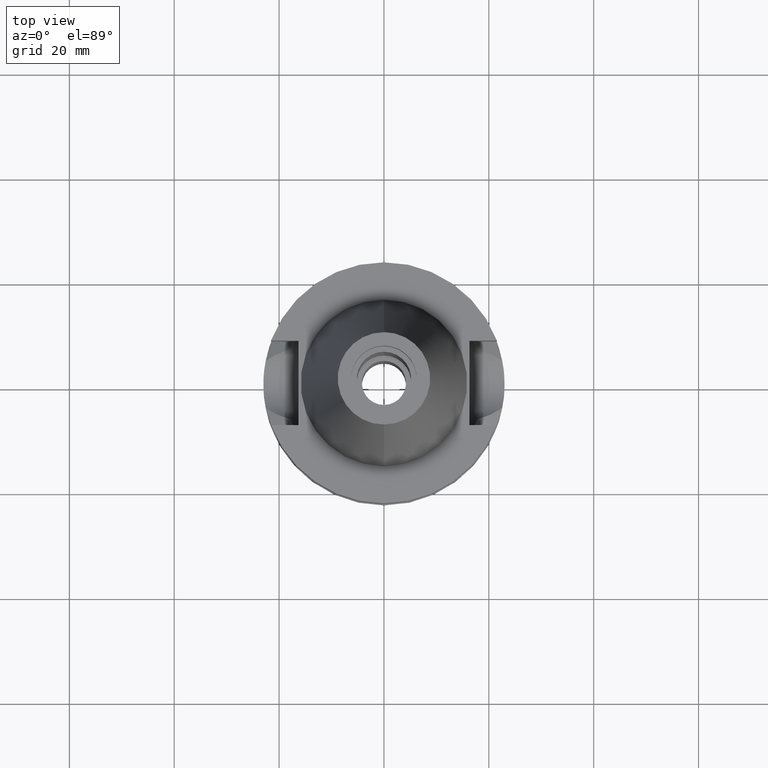
[diagram: clean part render]
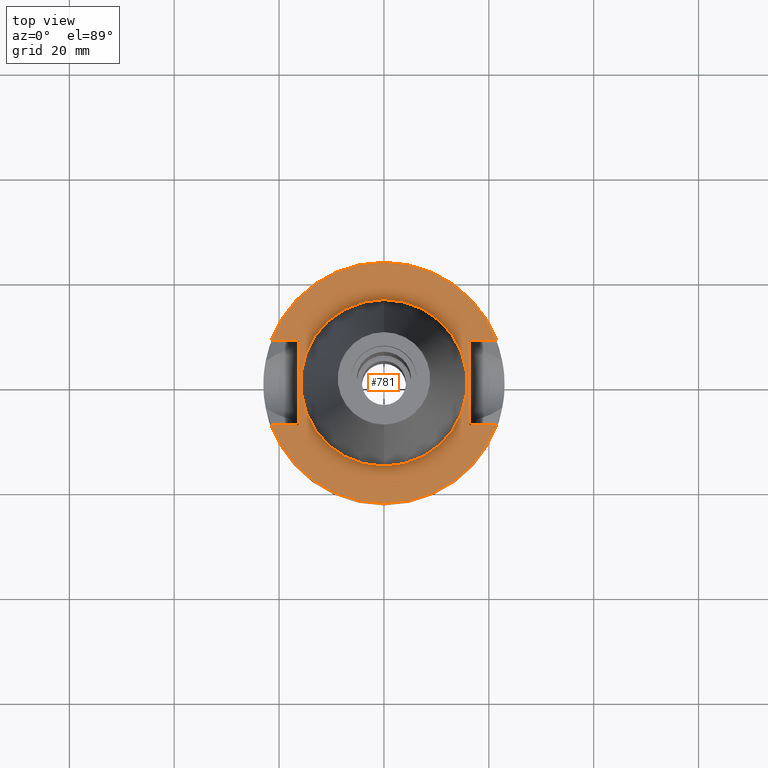
[diagram: same view with one face highlighted and labeled with its STEP entity id]
A machine part, top view. The second image highlights one B-rep face of the part: STEP entity #781.
In plain terms, the highlighted planar face has unit normal (0, 0, -1).
Its self-contained STEP definition (entity closure, byte-faithful):
#128 = VERTEX_POINT ( 'NONE', #2530 ) ;
#136 = CARTESIAN_POINT ( 'NONE',  ( 0.0000000000000000000, 0.0000000000000000000, -1.000000000000000000 ) ) ;
#184 = CARTESIAN_POINT ( 'NONE',  ( -21.54524309446999908, -8.050000000000000711, -1.000000000000000000 ) ) ;
#189 = LINE ( 'NONE', #2167, #2535 ) ;
#250 = VECTOR ( 'NONE', #556, 1000.000000000000000 ) ;
#280 = LINE ( 'NONE', #2700, #250 ) ;
#337 = LINE ( 'NONE', #1552, #861 ) ;
#408 = EDGE_CURVE ( 'NONE', #128, #1515, #189, .T. ) ;
#484 = EDGE_CURVE ( 'NONE', #1167, #726, #2929, .T. ) ;
#508 = PLANE ( 'NONE',  #1139 ) ;
#524 = DIRECTION ( 'NONE',  ( 0.0000000000000000000, 0.0000000000000000000, -1.000000000000000000 ) ) ;
#556 = DIRECTION ( 'NONE',  ( 1.000000000000000000, 9.313164748262000573E-14, 0.0000000000000000000 ) ) ;
#582 = CARTESIAN_POINT ( 'NONE',  ( 16.29999999999999716, 8.050000000000000711, -1.000000000000000000 ) ) ;
#587 = EDGE_CURVE ( 'NONE', #2203, #3000, #1337, .T. ) ;
#618 = CARTESIAN_POINT ( 'NONE',  ( 0.0000000000000000000, -15.87500000000000000, -1.000000000000000000 ) ) ;
#630 = VERTEX_POINT ( 'NONE', #1384 ) ;
#651 = DIRECTION ( 'NONE',  ( 0.0000000000000000000, 1.000000000000000000, 0.0000000000000000000 ) ) ;
#674 = CARTESIAN_POINT ( 'NONE',  ( -16.29999999999999716, -8.050000000000000711, -1.000000000000000000 ) ) ;
#690 = CARTESIAN_POINT ( 'NONE',  ( -16.29999999999999716, -8.050000000000000711, -1.000000000000000000 ) ) ;
#726 = VERTEX_POINT ( 'NONE', #184 ) ;
#752 = DIRECTION ( 'NONE',  ( 0.0000000000000000000, -1.000000000000000000, 0.0000000000000000000 ) ) ;
#781 = ADVANCED_FACE ( 'NONE', ( #2592, #1419 ), #508, .F. ) ;
#792 = ORIENTED_EDGE ( 'NONE', *, *, #2649, .F. ) ;
#861 = VECTOR ( 'NONE', #1305, 1000.000000000000000 ) ;
#953 = VECTOR ( 'NONE', #2012, 1000.000000000000000 ) ;
#1031 = DIRECTION ( 'NONE',  ( 0.0000000000000000000, 0.0000000000000000000, 1.000000000000000000 ) ) ;
#1069 = DIRECTION ( 'NONE',  ( 0.0000000000000000000, -1.000000000000000000, 0.0000000000000000000 ) ) ;
#1139 = AXIS2_PLACEMENT_3D ( 'NONE', #1895, #1468, #1663 ) ;
#1167 = VERTEX_POINT ( 'NONE', #2970 ) ;
#1203 = DIRECTION ( 'NONE',  ( 0.0000000000000000000, 0.0000000000000000000, -1.000000000000000000 ) ) ;
#1211 = ORIENTED_EDGE ( 'NONE', *, *, #1374, .F. ) ;
#1238 = VERTEX_POINT ( 'NONE', #1320 ) ;
#1272 = EDGE_CURVE ( 'NONE', #1167, #630, #1286, .T. ) ;
#1273 = LINE ( 'NONE', #582, #1603 ) ;
#1286 = LINE ( 'NONE', #2244, #953 ) ;
#1303 = ORIENTED_EDGE ( 'NONE', *, *, #484, .F. ) ;
#1305 = DIRECTION ( 'NONE',  ( 1.000000000000000000, -9.347030801892000173E-14, 0.0000000000000000000 ) ) ;
#1317 = ORIENTED_EDGE ( 'NONE', *, *, #587, .F. ) ;
#1320 = CARTESIAN_POINT ( 'NONE',  ( -16.29999999999999716, 8.050000000000000711, -1.000000000000000000 ) ) ;
#1337 = CIRCLE ( 'NONE', #2896, 15.87500000000000000 ) ;
#1374 = EDGE_CURVE ( 'NONE', #2316, #1238, #2818, .T. ) ;
#1384 = CARTESIAN_POINT ( 'NONE',  ( 16.29999999999999716, -8.050000000000000711, -1.000000000000000000 ) ) ;
#1396 = CIRCLE ( 'NONE', #2681, 15.87500000000000000 ) ;
#1407 = AXIS2_PLACEMENT_3D ( 'NONE', #2406, #1203, #1446 ) ;
#1419 = FACE_BOUND ( 'NONE', #1779, .T. ) ;
#1424 = EDGE_CURVE ( 'NONE', #3000, #2203, #1396, .T. ) ;
#1446 = DIRECTION ( 'NONE',  ( -0.9367496997597649644, 0.3499999999999864886, 0.0000000000000000000 ) ) ;
#1468 = DIRECTION ( 'NONE',  ( 0.0000000000000000000, 0.0000000000000000000, -1.000000000000000000 ) ) ;
#1485 = DIRECTION ( 'NONE',  ( 0.0000000000000000000, -1.000000000000000000, 0.0000000000000000000 ) ) ;
#1504 = CARTESIAN_POINT ( 'NONE',  ( 0.0000000000000000000, 0.0000000000000000000, -1.000000000000000000 ) ) ;
#1515 = VERTEX_POINT ( 'NONE', #1756 ) ;
#1552 = CARTESIAN_POINT ( 'NONE',  ( -21.54524309446999908, 8.050000000000000711, -1.000000000000000000 ) ) ;
#1595 = ORIENTED_EDGE ( 'NONE', *, *, #408, .F. ) ;
#1603 = VECTOR ( 'NONE', #1069, 1000.000000000000000 ) ;
#1637 = DIRECTION ( 'NONE',  ( 0.0000000000000000000, 1.000000000000000000, 0.0000000000000000000 ) ) ;
#1662 = EDGE_CURVE ( 'NONE', #1515, #630, #1273, .T. ) ;
#1663 = DIRECTION ( 'NONE',  ( 0.0000000000000000000, -1.000000000000000000, 0.0000000000000000000 ) ) ;
#1756 = CARTESIAN_POINT ( 'NONE',  ( 16.29999999999999716, 8.050000000000000711, -1.000000000000000000 ) ) ;
#1779 = EDGE_LOOP ( 'NONE', ( #1317, #2572 ) ) ;
#1895 = CARTESIAN_POINT ( 'NONE',  ( 0.0000000000000000000, 0.0000000000000000000, -1.000000000000000000 ) ) ;
#2000 = EDGE_LOOP ( 'NONE', ( #792, #1303, #2490, #2038, #1595, #2607, #2726, #1211 ) ) ;
#2012 = DIRECTION ( 'NONE',  ( -1.000000000000000000, 9.347030801892000173E-14, 0.0000000000000000000 ) ) ;
#2025 = CARTESIAN_POINT ( 'NONE',  ( 0.0000000000000000000, 15.87500000000000000, -1.000000000000000000 ) ) ;
#2038 = ORIENTED_EDGE ( 'NONE', *, *, #1662, .F. ) ;
#2102 = CIRCLE ( 'NONE', #1407, 23.00000000000000355 ) ;
#2167 = CARTESIAN_POINT ( 'NONE',  ( 21.54524309446999908, 8.050000000000000711, -1.000000000000000000 ) ) ;
#2177 = CARTESIAN_POINT ( 'NONE',  ( 0.0000000000000000000, 0.0000000000000000000, -1.000000000000000000 ) ) ;
#2203 = VERTEX_POINT ( 'NONE', #2025 ) ;
#2240 = VECTOR ( 'NONE', #1637, 1000.000000000000000 ) ;
#2244 = CARTESIAN_POINT ( 'NONE',  ( 21.54524309446999908, -8.050000000000000711, -1.000000000000000000 ) ) ;
#2279 = VERTEX_POINT ( 'NONE', #2524 ) ;
#2316 = VERTEX_POINT ( 'NONE', #674 ) ;
#2406 = CARTESIAN_POINT ( 'NONE',  ( 0.0000000000000000000, 0.0000000000000000000, -1.000000000000000000 ) ) ;
#2490 = ORIENTED_EDGE ( 'NONE', *, *, #1272, .T. ) ;
#2524 = CARTESIAN_POINT ( 'NONE',  ( -21.54524309446999908, 8.050000000000000711, -1.000000000000000000 ) ) ;
#2530 = CARTESIAN_POINT ( 'NONE',  ( 21.54524309446999908, 8.050000000000000711, -1.000000000000000000 ) ) ;
#2535 = VECTOR ( 'NONE', #3056, 1000.000000000000000 ) ;
#2572 = ORIENTED_EDGE ( 'NONE', *, *, #1424, .F. ) ;
#2592 = FACE_OUTER_BOUND ( 'NONE', #2000, .T. ) ;
#2607 = ORIENTED_EDGE ( 'NONE', *, *, #2755, .F. ) ;
#2649 = EDGE_CURVE ( 'NONE', #726, #2316, #280, .T. ) ;
#2681 = AXIS2_PLACEMENT_3D ( 'NONE', #1504, #1031, #752 ) ;
#2700 = CARTESIAN_POINT ( 'NONE',  ( -21.54524309446999908, -8.050000000000000711, -1.000000000000000000 ) ) ;
#2726 = ORIENTED_EDGE ( 'NONE', *, *, #2831, .T. ) ;
#2755 = EDGE_CURVE ( 'NONE', #2279, #128, #2102, .T. ) ;
#2772 = DIRECTION ( 'NONE',  ( 0.0000000000000000000, 0.0000000000000000000, 1.000000000000000000 ) ) ;
#2818 = LINE ( 'NONE', #690, #2240 ) ;
#2825 = AXIS2_PLACEMENT_3D ( 'NONE', #2177, #524, #1485 ) ;
#2831 = EDGE_CURVE ( 'NONE', #2279, #1238, #337, .T. ) ;
#2896 = AXIS2_PLACEMENT_3D ( 'NONE', #136, #2772, #651 ) ;
#2929 = CIRCLE ( 'NONE', #2825, 23.00000000000000000 ) ;
#2970 = CARTESIAN_POINT ( 'NONE',  ( 21.54524309446999908, -8.050000000000000711, -1.000000000000000000 ) ) ;
#3000 = VERTEX_POINT ( 'NONE', #618 ) ;
#3056 = DIRECTION ( 'NONE',  ( -1.000000000000000000, -9.380896855521999773E-14, 0.0000000000000000000 ) ) ;